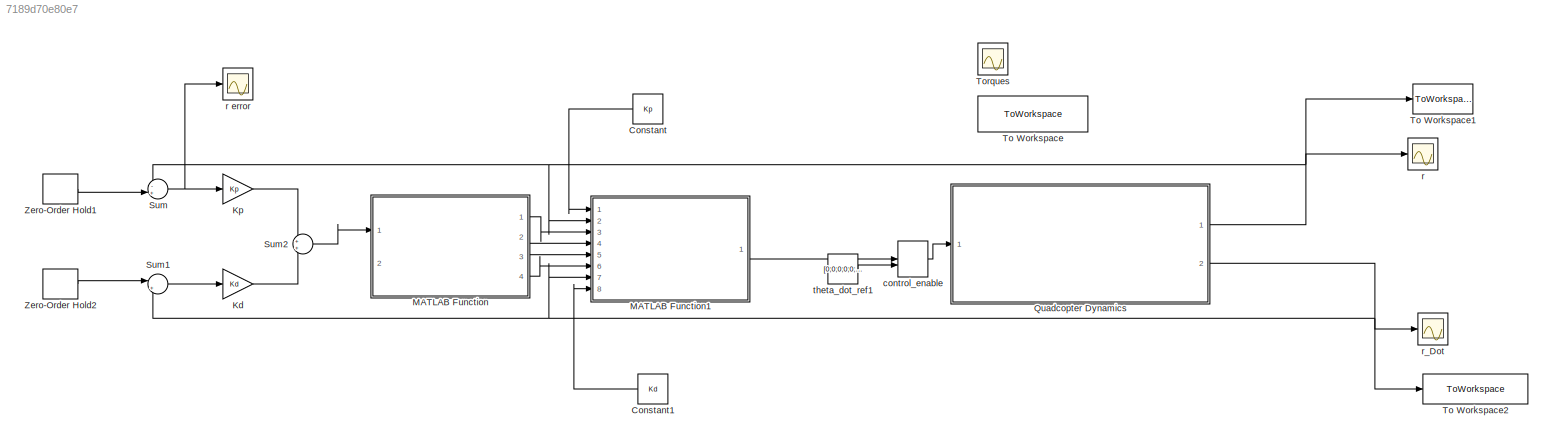
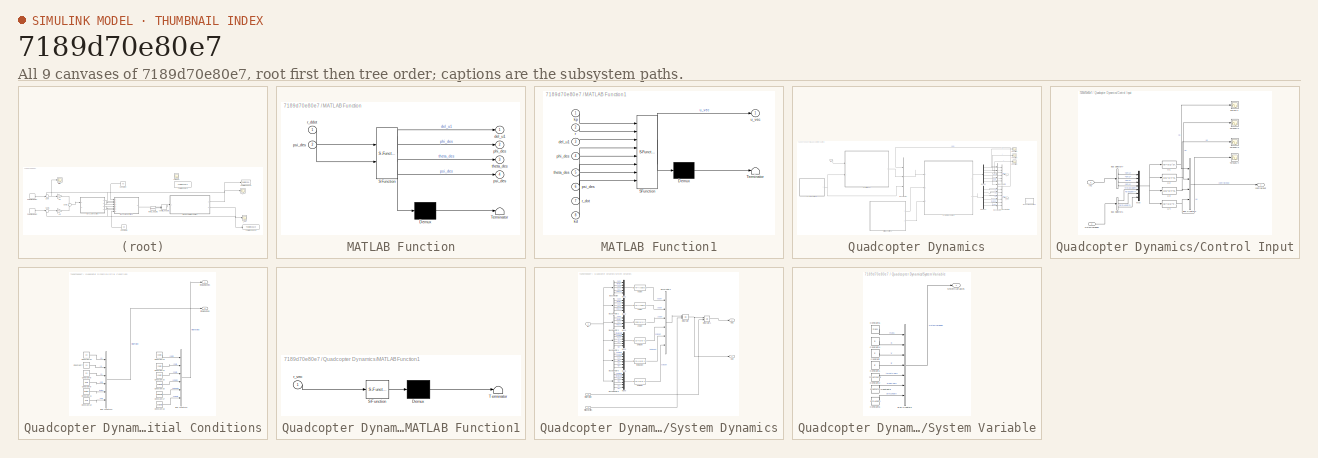
[diagram: thumbnail index - all 9 canvases of the model, root first then tree order]
MODEL slx_7189d70e80e7
KIND model
CONFIG AbsTol = auto
CONFIG EnableMultiTasking = on
CONFIG FixedStep = .001
CONFIG MaxStep = .001
CONFIG MinStep = auto
CONFIG RelTol = 1e-6
CONFIG SampleTimeConstraint = Unconstrained
CONFIG Solver = VariableStepAuto
CONFIG SolverName = VariableStepAuto
CONFIG StartTime = 0.0
CONFIG StopTime = 10
BLOCK [Constant] Constant
  Value = Kp
BLOCK [Constant] Constant1
  Value = Kd
BLOCK [Gain] Kd
  Gain = Kd
  OutDataTypeStr = Inherit: Inherit via internal rule
  ParamDataTypeStr = Inherit: Inherit via internal rule
  SaturateOnIntegerOverflow = off
BLOCK [Gain] Kp
  Gain = Kp
  OutDataTypeStr = Inherit: Inherit via internal rule
  ParamDataTypeStr = Inherit: Inherit via internal rule
  SaturateOnIntegerOverflow = off
BLOCK [SubSystem] MATLAB Function
  ErrorFcn = Stateflow.Translate.translate
  PermitHierarchicalResolution = ExplicitOnly
  Ports = [2, 4]
  RequestExecContextInheritance = off
  SFBlockType = MATLAB Function
  TreatAsAtomicUnit = on
BLOCK [Demux] MATLAB Function/ Demux 
  Outputs = 1
  Ports = [1, 1]
BLOCK [S-Function] MATLAB Function/ SFunction 
  EnableBusSupport = off
  FunctionName = sf_sfun
  PortCounts = [2 5]
  Ports = [2, 5]
  SFcnIsStateOwnerBlock = off
  SFunctionDeploymentMode = off
  Tag = Stateflow S-Function PID_control 3
BLOCK [Terminator] MATLAB Function/ Terminator 
BLOCK [Outport] MATLAB Function/del_u1
  IconDisplay = Port number
BLOCK [Outport] MATLAB Function/phi_des
  IconDisplay = Port number
  Port = 2
BLOCK [Outport] MATLAB Function/psi_des
  IconDisplay = Port number
  Port = 4
BLOCK [Inport] MATLAB Function/psi_des 
  IconDisplay = Port number
  Port = 2
BLOCK [Inport] MATLAB Function/r_ddot
  IconDisplay = Port number
BLOCK [Outport] MATLAB Function/theta_des
  IconDisplay = Port number
  Port = 3
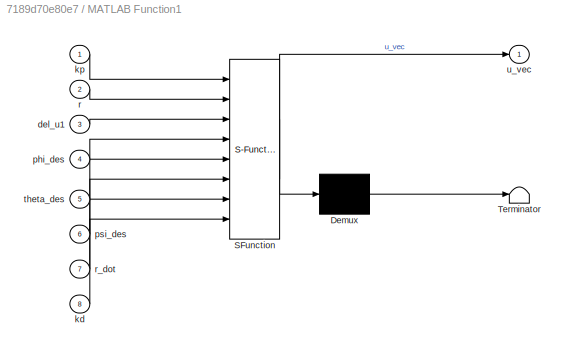
BLOCK [SubSystem] MATLAB Function1
  ErrorFcn = Stateflow.Translate.translate
  PermitHierarchicalResolution = ExplicitOnly
  Ports = [8, 1]
  RequestExecContextInheritance = off
  SFBlockType = MATLAB Function
  TreatAsAtomicUnit = on
BLOCK [Demux] MATLAB Function1/ Demux 
  Outputs = 1
  Ports = [1, 1]
BLOCK [S-Function] MATLAB Function1/ SFunction 
  EnableBusSupport = off
  FunctionName = sf_sfun
  PortCounts = [8 2]
  Ports = [8, 2]
  SFcnIsStateOwnerBlock = off
  SFunctionDeploymentMode = off
  Tag = Stateflow S-Function PID_control 5
BLOCK [Terminator] MATLAB Function1/ Terminator 
BLOCK [Inport] MATLAB Function1/del_u1
  IconDisplay = Port number
  Port = 3
BLOCK [Inport] MATLAB Function1/kd
  IconDisplay = Port number
  Port = 8
BLOCK [Inport] MATLAB Function1/kp
  IconDisplay = Port number
BLOCK [Inport] MATLAB Function1/phi_des
  IconDisplay = Port number
  Port = 4
BLOCK [Inport] MATLAB Function1/psi_des
  IconDisplay = Port number
  Port = 6
BLOCK [Inport] MATLAB Function1/r
  IconDisplay = Port number
  Port = 2
BLOCK [Inport] MATLAB Function1/r_dot
  IconDisplay = Port number
  Port = 7
BLOCK [Inport] MATLAB Function1/theta_des
  IconDisplay = Port number
  Port = 5
BLOCK [Outport] MATLAB Function1/u_vec
  IconDisplay = Port number
BLOCK [SubSystem] Quadcopter Dynamics
  Ports = [1, 2]
  RequestExecContextInheritance = off
BLOCK [BusCreator] Quadcopter Dynamics/Bus Creator
  DisplayOption = bar
  InheritFromInputs = on
  Inputs = 3
  Ports = [3, 1]
BLOCK [BusCreator] Quadcopter Dynamics/Bus Creator1
  DisplayOption = bar
  InheritFromInputs = on
  Inputs = 6
  Ports = [6, 1]
BLOCK [BusCreator] Quadcopter Dynamics/Bus Creator2
  DisplayOption = bar
  InheritFromInputs = on
  Inputs = 6
  Ports = [6, 1]
BLOCK [BusCreator] Quadcopter Dynamics/Bus Creator4
  DisplayOption = bar
  InheritFromInputs = on
  Inputs = 12
  Ports = [12, 1]
BLOCK [SubSystem] Quadcopter Dynamics/Control Input
  Ports = [2, 1]
  RequestExecContextInheritance = off
BLOCK [BusCreator] Quadcopter Dynamics/Control Input/Bus Creator1
  DisplayOption = bar
  InheritFromInputs = on
  Inputs = 4
  Ports = [4, 1]
BLOCK [BusSelector] Quadcopter Dynamics/Control Input/Bus Selector1
  OutputAsBus = off
  OutputSignals = thrustCoeff,dragCoeff,armLength
  Ports = [1, 3]
BLOCK [BusSelector] Quadcopter Dynamics/Control Input/Bus Selector7
  OutputAsBus = off
  OutputSignals = om1,om2,om3,om4
  Ports = [1, 4]
BLOCK [Scope] Quadcopter Dynamics/Control Input/ForceU1
  Floating = off
  NumInputPorts = 1
  Ports = [1]
  ScopeSpecificationString = Simulink.scopes.TimeScopeBlockCfg('CurrentConfiguration', extmgr.ConfigurationSet(extmgr.Configuration('Core','General UI',true),extmgr.Configuration('Core','Source UI',true),extmgr.Configuration('Sources','WiredSimulink',true,'DataLoggingVariableName','ScopeData4'),extmgr.Configuration('Visuals','Time Domain',true,'SerializedDisplays',{struct('MinYLimReal','9.00000','MaxYLimReal','11.00000','YLab...<+1392ch>
BLOCK [Inport] Quadcopter Dynamics/Control Input/In1
  IconDisplay = Port number
BLOCK [Mux] Quadcopter Dynamics/Control Input/Mux
  DisplayOption = bar
  Inputs = 7
  Ports = [7, 1]
BLOCK [Scope] Quadcopter Dynamics/Control Input/TorqueU2
  Floating = off
  NumInputPorts = 1
  Ports = [1]
  ScopeSpecificationString = Simulink.scopes.TimeScopeBlockCfg('CurrentConfiguration', extmgr.ConfigurationSet(extmgr.Configuration('Core','General UI',true),extmgr.Configuration('Core','Source UI',true),extmgr.Configuration('Sources','WiredSimulink',true,'DataLoggingVariableName','ScopeData7'),extmgr.Configuration('Visuals','Time Domain',true,'SerializedDisplays',{struct('MinYLimReal','-1.00000','MaxYLimReal','1.00000','YLab...<+1390ch>
BLOCK [Scope] Quadcopter Dynamics/Control Input/TorqueU3
  Floating = off
  NumInputPorts = 1
  Ports = [1]
  ScopeSpecificationString = Simulink.scopes.TimeScopeBlockCfg('CurrentConfiguration', extmgr.ConfigurationSet(extmgr.Configuration('Core','General UI',true),extmgr.Configuration('Core','Source UI',true),extmgr.Configuration('Sources','WiredSimulink',true,'DataLoggingVariableName','ScopeData5'),extmgr.Configuration('Visuals','Time Domain',true,'SerializedDisplays',{struct('MinYLimReal','-1.00000','MaxYLimReal','1.00000','YLab...<+1361ch>
BLOCK [Scope] Quadcopter Dynamics/Control Input/TorqueU4
  Floating = off
  NumInputPorts = 1
  Ports = [1]
  ScopeSpecificationString = Simulink.scopes.TimeScopeBlockCfg('CurrentConfiguration', extmgr.ConfigurationSet(extmgr.Configuration('Core','General UI',true),extmgr.Configuration('Core','Source UI',true),extmgr.Configuration('Sources','WiredSimulink',true,'DataLoggingVariableName','ScopeData6'),extmgr.Configuration('Visuals','Time Domain',true,'SerializedDisplays',{struct('MinYLimReal','-1.00000','MaxYLimReal','1.00000','YLab...<+1361ch>
BLOCK [Fcn] Quadcopter Dynamics/Control Input/U1
  Expr = u(5)*(u(1)^2+u(2)^2+u(3)^2+u(4)^2)
BLOCK [Fcn] Quadcopter Dynamics/Control Input/U2
  Expr = (u(5)*u(7)*sin(pi/4))*(u(1)^2+u(2)^2-u(3)^2-u(4)^2)
BLOCK [Fcn] Quadcopter Dynamics/Control Input/U3
  Expr = (u(5)*u(7)*sin(pi/4))*(u(1)^2-u(2)^2-u(3)^2+u(4)^2)
BLOCK [Fcn] Quadcopter Dynamics/Control Input/U4
  Expr = u(6)*(u(1)^2-u(2)^2+u(3)^2-u(4)^2)
BLOCK [Outport] Quadcopter Dynamics/Control Input/controlInput
  IconDisplay = Port number
BLOCK [Inport] Quadcopter Dynamics/Control Input/systemVariables
  IconDisplay = Port number
  Port = 2
BLOCK [Demux] Quadcopter Dynamics/Demux
  DisplayOption = bar
  Outputs = 6
  Ports = [1, 6]
BLOCK [Demux] Quadcopter Dynamics/Demux1
  DisplayOption = bar
  Outputs = 6
  Ports = [1, 6]
BLOCK [Inport] Quadcopter Dynamics/In1
  IconDisplay = Port number
BLOCK [SubSystem] Quadcopter Dynamics/Initial Conditions
  Ports = [0, 2]
  RequestExecContextInheritance = off
BLOCK [BusCreator] Quadcopter Dynamics/Initial Conditions/Bus Creator5
  DisplayOption = bar
  InheritFromInputs = on
  Inputs = 6
  Ports = [6, 1]
BLOCK [BusCreator] Quadcopter Dynamics/Initial Conditions/Bus Creator6
  DisplayOption = bar
  InheritFromInputs = on
  Inputs = 6
  Ports = [6, 1]
BLOCK [Constant] Quadcopter Dynamics/Initial Conditions/Constant10
  Value = x0
BLOCK [Constant] Quadcopter Dynamics/Initial Conditions/Constant11
  Value = theta0
BLOCK [Constant] Quadcopter Dynamics/Initial Conditions/Constant12
  Value = psi0
BLOCK [Constant] Quadcopter Dynamics/Initial Conditions/Constant13
  Value = xDot0
BLOCK [Constant] Quadcopter Dynamics/Initial Conditions/Constant14
  Value = yDot0
BLOCK [Constant] Quadcopter Dynamics/Initial Conditions/Constant15
  Value = zDot0
BLOCK [Constant] Quadcopter Dynamics/Initial Conditions/Constant16
  Value = phiDot0
BLOCK [Constant] Quadcopter Dynamics/Initial Conditions/Constant17
  Value = thetaDot0
BLOCK [Constant] Quadcopter Dynamics/Initial Conditions/Constant18
  Value = psiDot0
BLOCK [Constant] Quadcopter Dynamics/Initial Conditions/Constant7
  Value = y0
BLOCK [Constant] Quadcopter Dynamics/Initial Conditions/Constant8
  Value = z0
BLOCK [Constant] Quadcopter Dynamics/Initial Conditions/Constant9
  Value = phi0
BLOCK [Outport] Quadcopter Dynamics/Initial Conditions/initialPosition
  IconDisplay = Port number
  Port = 2
BLOCK [Outport] Quadcopter Dynamics/Initial Conditions/initialVelocities
  IconDisplay = Port number
BLOCK [SubSystem] Quadcopter Dynamics/MATLAB Function1
  ErrorFcn = Stateflow.Translate.translate
  PermitHierarchicalResolution = ExplicitOnly
  Ports = [1]
  RequestExecContextInheritance = off
  SFBlockType = MATLAB Function
  TreatAsAtomicUnit = on
BLOCK [Demux] Quadcopter Dynamics/MATLAB Function1/ Demux 
  Outputs = 1
  Ports = [1, 1]
BLOCK [S-Function] Quadcopter Dynamics/MATLAB Function1/ SFunction 
  EnableBusSupport = off
  FunctionName = sf_sfun
  PortCounts = [1 1]
  Ports = [1, 1]
  SFcnIsStateOwnerBlock = off
  SFunctionDeploymentMode = off
  Tag = Stateflow S-Function PID_control 1
BLOCK [Terminator] Quadcopter Dynamics/MATLAB Function1/ Terminator 
BLOCK [Inport] Quadcopter Dynamics/MATLAB Function1/r_vec
  IconDisplay = Port number
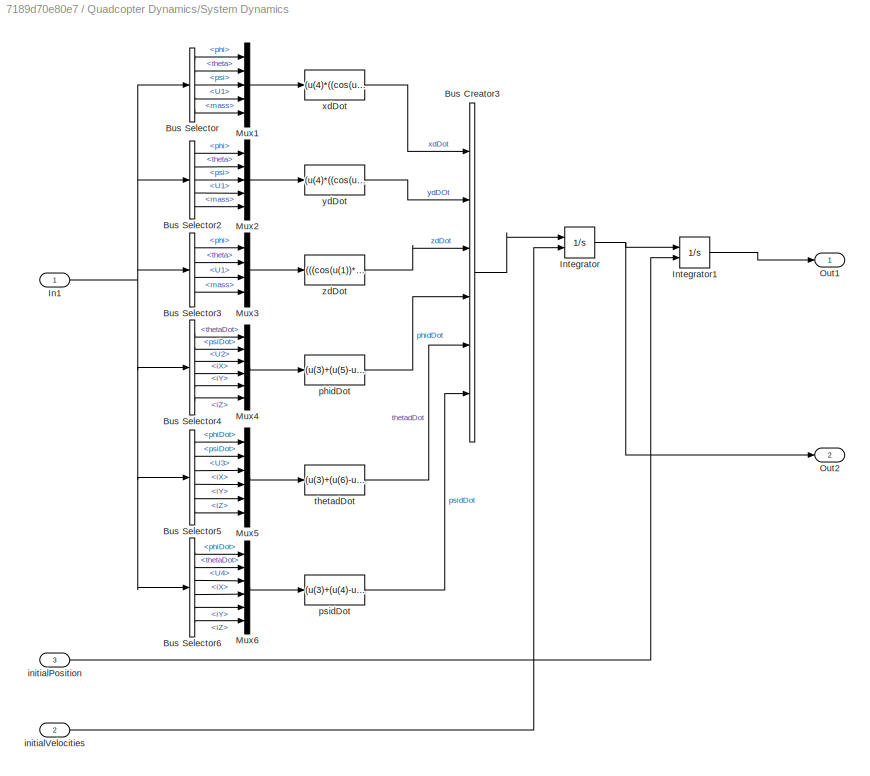
BLOCK [SubSystem] Quadcopter Dynamics/System Dynamics
  Ports = [3, 2]
  RequestExecContextInheritance = off
BLOCK [BusCreator] Quadcopter Dynamics/System Dynamics/Bus Creator3
  DisplayOption = bar
  InheritFromInputs = on
  Inputs = 6
  Ports = [6, 1]
BLOCK [BusSelector] Quadcopter Dynamics/System Dynamics/Bus Selector
  OutputAsBus = off
  OutputSignals = States.phi,States.theta,States.psi,controlInput.U1,systemVariables.mass
  Ports = [1, 5]
BLOCK [BusSelector] Quadcopter Dynamics/System Dynamics/Bus Selector2
  OutputAsBus = off
  OutputSignals = States.phi,States.theta,States.psi,controlInput.U1,systemVariables.mass
  Ports = [1, 5]
BLOCK [BusSelector] Quadcopter Dynamics/System Dynamics/Bus Selector3
  OutputAsBus = off
  OutputSignals = States.phi,States.theta,controlInput.U1,systemVariables.mass
  Ports = [1, 4]
BLOCK [BusSelector] Quadcopter Dynamics/System Dynamics/Bus Selector4
  OutputAsBus = off
  OutputSignals = States.thetaDot,States.psiDot,controlInput.U2,systemVariables.iX,systemVariables.iY,systemVariables.iZ
  Ports = [1, 6]
BLOCK [BusSelector] Quadcopter Dynamics/System Dynamics/Bus Selector5
  OutputAsBus = off
  OutputSignals = States.phiDot,States.psiDot,controlInput.U3,systemVariables.iX,systemVariables.iY,systemVariables.iZ
  Ports = [1, 6]
BLOCK [BusSelector] Quadcopter Dynamics/System Dynamics/Bus Selector6
  OutputAsBus = off
  OutputSignals = States.phiDot,States.thetaDot,controlInput.U4,systemVariables.iX,systemVariables.iY,systemVariables.iZ
  Ports = [1, 6]
BLOCK [Inport] Quadcopter Dynamics/System Dynamics/In1
  IconDisplay = Port number
BLOCK [Integrator] Quadcopter Dynamics/System Dynamics/Integrator
  InitialConditionSource = external
  Ports = [2, 1]
BLOCK [Integrator] Quadcopter Dynamics/System Dynamics/Integrator1
  InitialConditionSource = external
  Ports = [2, 1]
BLOCK [Mux] Quadcopter Dynamics/System Dynamics/Mux1
  DisplayOption = bar
  Inputs = 5
  Ports = [5, 1]
BLOCK [Mux] Quadcopter Dynamics/System Dynamics/Mux2
  DisplayOption = bar
  Inputs = 5
  Ports = [5, 1]
BLOCK [Mux] Quadcopter Dynamics/System Dynamics/Mux3
  DisplayOption = bar
  Ports = [4, 1]
BLOCK [Mux] Quadcopter Dynamics/System Dynamics/Mux4
  DisplayOption = bar
  Inputs = 6
  Ports = [6, 1]
BLOCK [Mux] Quadcopter Dynamics/System Dynamics/Mux5
  DisplayOption = bar
  Inputs = 6
  Ports = [6, 1]
BLOCK [Mux] Quadcopter Dynamics/System Dynamics/Mux6
  DisplayOption = bar
  Inputs = 6
  Ports = [6, 1]
BLOCK [Outport] Quadcopter Dynamics/System Dynamics/Out1
  IconDisplay = Port number
BLOCK [Outport] Quadcopter Dynamics/System Dynamics/Out2
  IconDisplay = Port number
  Port = 2
BLOCK [Inport] Quadcopter Dynamics/System Dynamics/initialPosition
  IconDisplay = Port number
  Port = 3
BLOCK [Inport] Quadcopter Dynamics/System Dynamics/initialVelocities
  IconDisplay = Port number
  Port = 2
BLOCK [Fcn] Quadcopter Dynamics/System Dynamics/phidDot
  Expr = (u(3)+(u(5)-u(6))*(u(1)*u(2)))/u(4)
BLOCK [Fcn] Quadcopter Dynamics/System Dynamics/psidDot
  Expr = (u(3)+(u(4)-u(5))*(u(1)*u(2)))/u(6)
BLOCK [Fcn] Quadcopter Dynamics/System Dynamics/thetadDot
  Expr = (u(3)+(u(6)-u(4))*(u(1)*u(2)))/u(5)
BLOCK [Fcn] Quadcopter Dynamics/System Dynamics/xdDot
  Expr = (u(4)*((cos(u(1))*sin(u(2))*cos(u(3)))+(sin(u(1))*sin(u(3)))))/u(5)
BLOCK [Fcn] Quadcopter Dynamics/System Dynamics/ydDot
  Expr = (u(4)*((cos(u(1))*sin(u(2))*sin(u(3)))-(sin(u(1))*cos(u(3)))))/u(5)
BLOCK [Fcn] Quadcopter Dynamics/System Dynamics/zdDot
  Expr = (((cos(u(1))*cos(u(2)))*u(3))/u(4))-9.81
BLOCK [SubSystem] Quadcopter Dynamics/System Variable
  Ports = [0, 1]
  RequestExecContextInheritance = off
BLOCK [BusCreator] Quadcopter Dynamics/System Variable/Bus Creator2
  DisplayOption = bar
  InheritFromInputs = on
  Inputs = 7
  Ports = [7, 1]
BLOCK [Constant] Quadcopter Dynamics/System Variable/Constant
  Value = iY
BLOCK [Constant] Quadcopter Dynamics/System Variable/Constant1
  Value = iZ
BLOCK [Constant] Quadcopter Dynamics/System Variable/Constant2
  Value = thrustFactor
BLOCK [Constant] Quadcopter Dynamics/System Variable/Constant3
  Value = dragFactor
BLOCK [Constant] Quadcopter Dynamics/System Variable/Constant4
  Value = iX
BLOCK [Constant] Quadcopter Dynamics/System Variable/Constant5
  Value = armLength
BLOCK [Constant] Quadcopter Dynamics/System Variable/Constant6
  Value = mass
BLOCK [Outport] Quadcopter Dynamics/System Variable/systemVariables
  IconDisplay = Port number
BLOCK [Scope] Quadcopter Dynamics/X Position
  Floating = off
  NumInputPorts = 1
  Ports = [1]
  ScopeSpecificationString = Simulink.scopes.TimeScopeBlockCfg('CurrentConfiguration', extmgr.ConfigurationSet(extmgr.Configuration('Core','General UI',true),extmgr.Configuration('Core','Source UI',true),extmgr.Configuration('Sources','WiredSimulink',true,'DataLoggingVariableName','ScopeData5'),extmgr.Configuration('Visuals','Time Domain',true,'SerializedDisplays',{struct('MinYLimReal','4.00000','MaxYLimReal','6.00000','YLabe...<+1387ch>
BLOCK [Scope] Quadcopter Dynamics/Y Position
  Floating = off
  NumInputPorts = 1
  Ports = [1]
  ScopeSpecificationString = Simulink.scopes.TimeScopeBlockCfg('CurrentConfiguration', extmgr.ConfigurationSet(extmgr.Configuration('Core','General UI',true),extmgr.Configuration('Core','Source UI',true),extmgr.Configuration('Sources','WiredSimulink',true,'DataLoggingVariableName','ScopeData6'),extmgr.Configuration('Visuals','Time Domain',true,'SerializedDisplays',{struct('MinYLimReal','4.00000','MaxYLimReal','6.00000','YLabe...<+1358ch>
BLOCK [Scope] Quadcopter Dynamics/Z Position
  Floating = off
  NumInputPorts = 1
  Ports = [1]
  ScopeSpecificationString = Simulink.scopes.TimeScopeBlockCfg('CurrentConfiguration', extmgr.ConfigurationSet(extmgr.Configuration('Core','General UI',true),extmgr.Configuration('Core','Source UI',true),extmgr.Configuration('Sources','WiredSimulink',true,'DataLoggingVariableName','ScopeData7'),extmgr.Configuration('Visuals','Time Domain',true,'SerializedDisplays',{struct('MinYLimReal','-42.79688','MaxYLimReal','435.17188','Y...<+1370ch>
BLOCK [Outport] Quadcopter Dynamics/r
  IconDisplay = Port number
BLOCK [Outport] Quadcopter Dynamics/r_dot
  IconDisplay = Port number
  Port = 2
BLOCK [Sum] Sum
  IconShape = round
  InputSameDT = off
  Inputs = -+|
  OutDataTypeStr = Inherit: Inherit via internal rule
  Ports = [2, 1]
  SaturateOnIntegerOverflow = off
BLOCK [Sum] Sum1
  IconShape = round
  InputSameDT = off
  Inputs = |+-
  OutDataTypeStr = Inherit: Inherit via internal rule
  Ports = [2, 1]
  SaturateOnIntegerOverflow = off
BLOCK [Sum] Sum2
  IconShape = round
  InputSameDT = off
  OutDataTypeStr = Inherit: Inherit via internal rule
  Ports = [2, 1]
  SaturateOnIntegerOverflow = off
BLOCK [ToWorkspace] To Workspace
  FixptAsFi = on
  MaxDataPoints = inf
  Ports = [1]
  SampleTime = -1
  Save2DSignal = 3-D array (concatenate along third dimension)
  SaveFormat = Structure With Time
  VariableName = control_torque
BLOCK [ToWorkspace] To Workspace1
  FixptAsFi = on
  MaxDataPoints = inf
  Ports = [1]
  SampleTime = -1
  Save2DSignal = 3-D array (concatenate along third dimension)
  SaveFormat = Structure With Time
  VariableName = theta_actual
BLOCK [ToWorkspace] To Workspace2
  FixptAsFi = on
  MaxDataPoints = inf
  Ports = [1]
  SampleTime = -1
  Save2DSignal = 3-D array (concatenate along third dimension)
  SaveFormat = Structure With Time
  VariableName = theta_dot_actual
BLOCK [Scope] Torques
  Floating = off
  NumInputPorts = 1
  Ports = [1]
  ScopeSpecificationString = Simulink.scopes.TimeScopeBlockCfg('CurrentConfiguration', extmgr.ConfigurationSet(extmgr.Configuration('Core','General UI',true),extmgr.Configuration('Core','Source UI',true),extmgr.Configuration('Sources','WiredSimulink',true,'DataLoggingVariableName','ScopeData1'),extmgr.Configuration('Visuals','Time Domain',true,'SerializedDisplays',{struct('MinYLimReal','-206.1215','MaxYLimReal','508.67229','Y...<+1536ch>
BLOCK [ZeroOrderHold] Zero-Order Hold1
  SampleTime = 0.001
BLOCK [ZeroOrderHold] Zero-Order Hold2
  SampleTime = 0.001
BLOCK [ManualSwitch] control_enable
BLOCK [Scope] r
  Floating = off
  NumInputPorts = 1
  Ports = [1]
  ScopeSpecificationString = Simulink.scopes.TimeScopeBlockCfg('CurrentConfiguration', extmgr.ConfigurationSet(extmgr.Configuration('Core','General UI',true),extmgr.Configuration('Core','Source UI',true),extmgr.Configuration('Sources','WiredSimulink',true),extmgr.Configuration('Visuals','Time Domain',true,'SerializedDisplays',{struct('MinYLimReal','-2.19854','MaxYLimReal','4.54615','YLabelReal','','MinYLimMag','0.00000','MaxY...<+1394ch>
BLOCK [Scope] r error
  Floating = off
  NumInputPorts = 1
  Ports = [1]
  ScopeSpecificationString = Simulink.scopes.TimeScopeBlockCfg('CurrentConfiguration', extmgr.ConfigurationSet(extmgr.Configuration('Core','General UI',true),extmgr.Configuration('Core','Source UI',true),extmgr.Configuration('Sources','WiredSimulink',true,'DataLoggingVariableName','ScopeData2'),extmgr.Configuration('Visuals','Time Domain',true,'SerializedDisplays',{struct('MinYLimReal','-2.01582','MaxYLimReal','2.80687','YLab...<+1446ch>
BLOCK [Scope] r_Dot
  Floating = off
  NumInputPorts = 1
  Ports = [1]
  ScopeSpecificationString = Simulink.scopes.TimeScopeBlockCfg('CurrentConfiguration', extmgr.ConfigurationSet(extmgr.Configuration('Core','General UI',true),extmgr.Configuration('Core','Source UI',true),extmgr.Configuration('Sources','WiredSimulink',true,'DataLoggingVariableName','ScopeData1'),extmgr.Configuration('Visuals','Time Domain',true,'SerializedDisplays',{struct('MinYLimReal','-5.51584','MaxYLimReal','1.67824','YLab...<+1433ch>
BLOCK [Constant] theta_dot_ref1
  Value = [0;0;0;0;0;0]
LINE Constant1:1 -> MATLAB Function1:8
LINE Constant:1 -> MATLAB Function1:1
LINE Kd:1 -> Sum2:2
LINE Kp:1 -> Sum2:1
LINE MATLAB Function1:1 -> control_enable:1
LINE MATLAB Function:1 -> MATLAB Function1:3
LINE MATLAB Function:2 -> MATLAB Function1:4
LINE MATLAB Function:3 -> MATLAB Function1:5
LINE MATLAB Function:4 -> MATLAB Function1:6
LINE Quadcopter Dynamics/Bus Creator1:1 -> Quadcopter Dynamics/r:1
LINE Quadcopter Dynamics/Bus Creator2:1 -> Quadcopter Dynamics/r_dot:1
LINE Quadcopter Dynamics/Bus Creator4:1 -> Quadcopter Dynamics/Bus Creator:1
LINE Quadcopter Dynamics/Bus Creator:1 -> Quadcopter Dynamics/System Dynamics:1
LINE Quadcopter Dynamics/Control Input/Bus Creator1:1 -> Quadcopter Dynamics/Control Input/controlInput:1
LINE Quadcopter Dynamics/Control Input/Bus Selector1:1 -> Quadcopter Dynamics/Control Input/Mux:5
LINE Quadcopter Dynamics/Control Input/Bus Selector1:2 -> Quadcopter Dynamics/Control Input/Mux:6
LINE Quadcopter Dynamics/Control Input/Bus Selector1:3 -> Quadcopter Dynamics/Control Input/Mux:7
LINE Quadcopter Dynamics/Control Input/Bus Selector7:1 -> Quadcopter Dynamics/Control Input/Mux:1
LINE Quadcopter Dynamics/Control Input/Bus Selector7:2 -> Quadcopter Dynamics/Control Input/Mux:2
LINE Quadcopter Dynamics/Control Input/Bus Selector7:3 -> Quadcopter Dynamics/Control Input/Mux:3
LINE Quadcopter Dynamics/Control Input/Bus Selector7:4 -> Quadcopter Dynamics/Control Input/Mux:4
LINE Quadcopter Dynamics/Control Input/In1:1 -> Quadcopter Dynamics/Control Input/Bus Selector7:1
NET Quadcopter Dynamics/Control Input/Mux:1 -> Quadcopter Dynamics/Control Input/U1:1, Quadcopter Dynamics/Control Input/U2:1, Quadcopter Dynamics/Control Input/U3:1, Quadcopter Dynamics/Control Input/U4:1
NET Quadcopter Dynamics/Control Input/U1:1 -> Quadcopter Dynamics/Control Input/Bus Creator1:1, Quadcopter Dynamics/Control Input/ForceU1:1
NET Quadcopter Dynamics/Control Input/U2:1 -> Quadcopter Dynamics/Control Input/Bus Creator1:2, Quadcopter Dynamics/Control Input/TorqueU2:1
NET Quadcopter Dynamics/Control Input/U3:1 -> Quadcopter Dynamics/Control Input/Bus Creator1:3, Quadcopter Dynamics/Control Input/TorqueU3:1
NET Quadcopter Dynamics/Control Input/U4:1 -> Quadcopter Dynamics/Control Input/Bus Creator1:4, Quadcopter Dynamics/Control Input/TorqueU4:1
LINE Quadcopter Dynamics/Control Input/systemVariables:1 -> Quadcopter Dynamics/Control Input/Bus Selector1:1
LINE Quadcopter Dynamics/Control Input:1 -> Quadcopter Dynamics/Bus Creator:2
NET Quadcopter Dynamics/Demux1:1 -> Quadcopter Dynamics/Bus Creator2:1, Quadcopter Dynamics/Bus Creator4:7
NET Quadcopter Dynamics/Demux1:2 -> Quadcopter Dynamics/Bus Creator2:2, Quadcopter Dynamics/Bus Creator4:8
NET Quadcopter Dynamics/Demux1:3 -> Quadcopter Dynamics/Bus Creator2:3, Quadcopter Dynamics/Bus Creator4:9
NET Quadcopter Dynamics/Demux1:4 -> Quadcopter Dynamics/Bus Creator2:4, Quadcopter Dynamics/Bus Creator4:10
NET Quadcopter Dynamics/Demux1:5 -> Quadcopter Dynamics/Bus Creator2:5, Quadcopter Dynamics/Bus Creator4:11
NET Quadcopter Dynamics/Demux1:6 -> Quadcopter Dynamics/Bus Creator2:6, Quadcopter Dynamics/Bus Creator4:12
NET Quadcopter Dynamics/Demux:1 -> Quadcopter Dynamics/Bus Creator1:1, Quadcopter Dynamics/Bus Creator4:1, Quadcopter Dynamics/X Position:1
NET Quadcopter Dynamics/Demux:2 -> Quadcopter Dynamics/Bus Creator1:2, Quadcopter Dynamics/Bus Creator4:2, Quadcopter Dynamics/Y Position:1
NET Quadcopter Dynamics/Demux:3 -> Quadcopter Dynamics/Bus Creator1:3, Quadcopter Dynamics/Bus Creator4:3, Quadcopter Dynamics/Z Position:1
NET Quadcopter Dynamics/Demux:4 -> Quadcopter Dynamics/Bus Creator1:4, Quadcopter Dynamics/Bus Creator4:4
NET Quadcopter Dynamics/Demux:5 -> Quadcopter Dynamics/Bus Creator1:5, Quadcopter Dynamics/Bus Creator4:5
NET Quadcopter Dynamics/Demux:6 -> Quadcopter Dynamics/Bus Creator1:6, Quadcopter Dynamics/Bus Creator4:6
LINE Quadcopter Dynamics/In1:1 -> Quadcopter Dynamics/Control Input:1
LINE Quadcopter Dynamics/Initial Conditions/Bus Creator5:1 -> Quadcopter Dynamics/Initial Conditions/initialPosition:1
LINE Quadcopter Dynamics/Initial Conditions/Bus Creator6:1 -> Quadcopter Dynamics/Initial Conditions/initialVelocities:1
LINE Quadcopter Dynamics/Initial Conditions/Constant10:1 -> Quadcopter Dynamics/Initial Conditions/Bus Creator5:1
LINE Quadcopter Dynamics/Initial Conditions/Constant11:1 -> Quadcopter Dynamics/Initial Conditions/Bus Creator5:5
LINE Quadcopter Dynamics/Initial Conditions/Constant12:1 -> Quadcopter Dynamics/Initial Conditions/Bus Creator5:6
LINE Quadcopter Dynamics/Initial Conditions/Constant13:1 -> Quadcopter Dynamics/Initial Conditions/Bus Creator6:1
LINE Quadcopter Dynamics/Initial Conditions/Constant14:1 -> Quadcopter Dynamics/Initial Conditions/Bus Creator6:2
LINE Quadcopter Dynamics/Initial Conditions/Constant15:1 -> Quadcopter Dynamics/Initial Conditions/Bus Creator6:3
LINE Quadcopter Dynamics/Initial Conditions/Constant16:1 -> Quadcopter Dynamics/Initial Conditions/Bus Creator6:4
LINE Quadcopter Dynamics/Initial Conditions/Constant17:1 -> Quadcopter Dynamics/Initial Conditions/Bus Creator6:5
LINE Quadcopter Dynamics/Initial Conditions/Constant18:1 -> Quadcopter Dynamics/Initial Conditions/Bus Creator6:6
LINE Quadcopter Dynamics/Initial Conditions/Constant7:1 -> Quadcopter Dynamics/Initial Conditions/Bus Creator5:2
LINE Quadcopter Dynamics/Initial Conditions/Constant8:1 -> Quadcopter Dynamics/Initial Conditions/Bus Creator5:3
LINE Quadcopter Dynamics/Initial Conditions/Constant9:1 -> Quadcopter Dynamics/Initial Conditions/Bus Creator5:4
LINE Quadcopter Dynamics/Initial Conditions:1 -> Quadcopter Dynamics/System Dynamics:2
LINE Quadcopter Dynamics/Initial Conditions:2 -> Quadcopter Dynamics/System Dynamics:3
LINE Quadcopter Dynamics/System Dynamics/Bus Creator3:1 -> Quadcopter Dynamics/System Dynamics/Integrator:1
LINE Quadcopter Dynamics/System Dynamics/Bus Selector2:1 -> Quadcopter Dynamics/System Dynamics/Mux2:1
LINE Quadcopter Dynamics/System Dynamics/Bus Selector2:2 -> Quadcopter Dynamics/System Dynamics/Mux2:2
LINE Quadcopter Dynamics/System Dynamics/Bus Selector2:3 -> Quadcopter Dynamics/System Dynamics/Mux2:3
LINE Quadcopter Dynamics/System Dynamics/Bus Selector2:4 -> Quadcopter Dynamics/System Dynamics/Mux2:4
LINE Quadcopter Dynamics/System Dynamics/Bus Selector2:5 -> Quadcopter Dynamics/System Dynamics/Mux2:5
LINE Quadcopter Dynamics/System Dynamics/Bus Selector3:1 -> Quadcopter Dynamics/System Dynamics/Mux3:1
LINE Quadcopter Dynamics/System Dynamics/Bus Selector3:2 -> Quadcopter Dynamics/System Dynamics/Mux3:2
LINE Quadcopter Dynamics/System Dynamics/Bus Selector3:3 -> Quadcopter Dynamics/System Dynamics/Mux3:3
LINE Quadcopter Dynamics/System Dynamics/Bus Selector3:4 -> Quadcopter Dynamics/System Dynamics/Mux3:4
LINE Quadcopter Dynamics/System Dynamics/Bus Selector4:1 -> Quadcopter Dynamics/System Dynamics/Mux4:1
LINE Quadcopter Dynamics/System Dynamics/Bus Selector4:2 -> Quadcopter Dynamics/System Dynamics/Mux4:2
LINE Quadcopter Dynamics/System Dynamics/Bus Selector4:3 -> Quadcopter Dynamics/System Dynamics/Mux4:3
LINE Quadcopter Dynamics/System Dynamics/Bus Selector4:4 -> Quadcopter Dynamics/System Dynamics/Mux4:4
LINE Quadcopter Dynamics/System Dynamics/Bus Selector4:5 -> Quadcopter Dynamics/System Dynamics/Mux4:5
LINE Quadcopter Dynamics/System Dynamics/Bus Selector4:6 -> Quadcopter Dynamics/System Dynamics/Mux4:6
LINE Quadcopter Dynamics/System Dynamics/Bus Selector5:1 -> Quadcopter Dynamics/System Dynamics/Mux5:1
LINE Quadcopter Dynamics/System Dynamics/Bus Selector5:2 -> Quadcopter Dynamics/System Dynamics/Mux5:2
LINE Quadcopter Dynamics/System Dynamics/Bus Selector5:3 -> Quadcopter Dynamics/System Dynamics/Mux5:3
LINE Quadcopter Dynamics/System Dynamics/Bus Selector5:4 -> Quadcopter Dynamics/System Dynamics/Mux5:4
LINE Quadcopter Dynamics/System Dynamics/Bus Selector5:5 -> Quadcopter Dynamics/System Dynamics/Mux5:5
LINE Quadcopter Dynamics/System Dynamics/Bus Selector5:6 -> Quadcopter Dynamics/System Dynamics/Mux5:6
LINE Quadcopter Dynamics/System Dynamics/Bus Selector6:1 -> Quadcopter Dynamics/System Dynamics/Mux6:1
LINE Quadcopter Dynamics/System Dynamics/Bus Selector6:2 -> Quadcopter Dynamics/System Dynamics/Mux6:2
LINE Quadcopter Dynamics/System Dynamics/Bus Selector6:3 -> Quadcopter Dynamics/System Dynamics/Mux6:3
LINE Quadcopter Dynamics/System Dynamics/Bus Selector6:4 -> Quadcopter Dynamics/System Dynamics/Mux6:4
LINE Quadcopter Dynamics/System Dynamics/Bus Selector6:5 -> Quadcopter Dynamics/System Dynamics/Mux6:5
LINE Quadcopter Dynamics/System Dynamics/Bus Selector6:6 -> Quadcopter Dynamics/System Dynamics/Mux6:6
LINE Quadcopter Dynamics/System Dynamics/Bus Selector:1 -> Quadcopter Dynamics/System Dynamics/Mux1:1
LINE Quadcopter Dynamics/System Dynamics/Bus Selector:2 -> Quadcopter Dynamics/System Dynamics/Mux1:2
LINE Quadcopter Dynamics/System Dynamics/Bus Selector:3 -> Quadcopter Dynamics/System Dynamics/Mux1:3
LINE Quadcopter Dynamics/System Dynamics/Bus Selector:4 -> Quadcopter Dynamics/System Dynamics/Mux1:4
LINE Quadcopter Dynamics/System Dynamics/Bus Selector:5 -> Quadcopter Dynamics/System Dynamics/Mux1:5
NET Quadcopter Dynamics/System Dynamics/In1:1 -> Quadcopter Dynamics/System Dynamics/Bus Selector2:1, Quadcopter Dynamics/System Dynamics/Bus Selector3:1, Quadcopter Dynamics/System Dynamics/Bus Selector4:1, Quadcopter Dynamics/System Dynamics/Bus Selector5:1, Quadcopter Dynamics/System Dynamics/Bus Selector6:1, Quadcopter Dynamics/System Dynamics/Bus Selector:1
LINE Quadcopter Dynamics/System Dynamics/Integrator1:1 -> Quadcopter Dynamics/System Dynamics/Out1:1
NET Quadcopter Dynamics/System Dynamics/Integrator:1 -> Quadcopter Dynamics/System Dynamics/Integrator1:1, Quadcopter Dynamics/System Dynamics/Out2:1
LINE Quadcopter Dynamics/System Dynamics/Mux1:1 -> Quadcopter Dynamics/System Dynamics/xdDot:1
LINE Quadcopter Dynamics/System Dynamics/Mux2:1 -> Quadcopter Dynamics/System Dynamics/ydDot:1
LINE Quadcopter Dynamics/System Dynamics/Mux3:1 -> Quadcopter Dynamics/System Dynamics/zdDot:1
LINE Quadcopter Dynamics/System Dynamics/Mux4:1 -> Quadcopter Dynamics/System Dynamics/phidDot:1
LINE Quadcopter Dynamics/System Dynamics/Mux5:1 -> Quadcopter Dynamics/System Dynamics/thetadDot:1
LINE Quadcopter Dynamics/System Dynamics/Mux6:1 -> Quadcopter Dynamics/System Dynamics/psidDot:1
LINE Quadcopter Dynamics/System Dynamics/initialPosition:1 -> Quadcopter Dynamics/System Dynamics/Integrator1:2
LINE Quadcopter Dynamics/System Dynamics/initialVelocities:1 -> Quadcopter Dynamics/System Dynamics/Integrator:2
LINE Quadcopter Dynamics/System Dynamics/phidDot:1 -> Quadcopter Dynamics/System Dynamics/Bus Creator3:4
LINE Quadcopter Dynamics/System Dynamics/psidDot:1 -> Quadcopter Dynamics/System Dynamics/Bus Creator3:6
LINE Quadcopter Dynamics/System Dynamics/thetadDot:1 -> Quadcopter Dynamics/System Dynamics/Bus Creator3:5
LINE Quadcopter Dynamics/System Dynamics/xdDot:1 -> Quadcopter Dynamics/System Dynamics/Bus Creator3:1
LINE Quadcopter Dynamics/System Dynamics/ydDot:1 -> Quadcopter Dynamics/System Dynamics/Bus Creator3:2
LINE Quadcopter Dynamics/System Dynamics/zdDot:1 -> Quadcopter Dynamics/System Dynamics/Bus Creator3:3
LINE Quadcopter Dynamics/System Dynamics:1 -> Quadcopter Dynamics/Demux:1
LINE Quadcopter Dynamics/System Dynamics:2 -> Quadcopter Dynamics/Demux1:1
LINE Quadcopter Dynamics/System Variable/Bus Creator2:1 -> Quadcopter Dynamics/System Variable/systemVariables:1
LINE Quadcopter Dynamics/System Variable/Constant1:1 -> Quadcopter Dynamics/System Variable/Bus Creator2:4
LINE Quadcopter Dynamics/System Variable/Constant2:1 -> Quadcopter Dynamics/System Variable/Bus Creator2:5
LINE Quadcopter Dynamics/System Variable/Constant3:1 -> Quadcopter Dynamics/System Variable/Bus Creator2:6
LINE Quadcopter Dynamics/System Variable/Constant4:1 -> Quadcopter Dynamics/System Variable/Bus Creator2:2
LINE Quadcopter Dynamics/System Variable/Constant5:1 -> Quadcopter Dynamics/System Variable/Bus Creator2:7
LINE Quadcopter Dynamics/System Variable/Constant6:1 -> Quadcopter Dynamics/System Variable/Bus Creator2:1
LINE Quadcopter Dynamics/System Variable/Constant:1 -> Quadcopter Dynamics/System Variable/Bus Creator2:3
NET Quadcopter Dynamics/System Variable:1 -> Quadcopter Dynamics/Bus Creator:3, Quadcopter Dynamics/Control Input:2
NET Quadcopter Dynamics:1 -> MATLAB Function1:2, Sum:1, To Workspace1:1, r:1
NET Quadcopter Dynamics:2 -> MATLAB Function1:7, Sum1:2, To Workspace2:1, r_Dot:1
LINE Sum1:1 -> Kd:1
LINE Sum2:1 -> MATLAB Function:1
NET Sum:1 -> Kp:1, r error:1
LINE Zero-Order Hold1:1 -> Sum:2
LINE Zero-Order Hold2:1 -> Sum1:1
LINE control_enable:1 -> Quadcopter Dynamics:1
LINE theta_dot_ref1:1 -> control_enable:2
note: NET lines group one-source signal fan-out (src -> all destinations, sorted); 1:1 wires keep LINE
CHART Quadcopter Dynamics/MATLAB Function1 states=1 transitions=1
  STATE_LABEL 'eML_blk_kernel()'
  STATE_LABEL "SCRIPT:\nfunction drawDrone(r_vec)\n%#codegen\ncoder.extrinsic('evalin');\ncoder.extrinsic('load');\npersistent figNum axisHandel Sim_Exact points3D;\n\nif isempty(Sim_Exact)\n    Sim_Exact = evalin('base','Sim_Exact');\n    a.points3D = zeros(21,3,'double');\n    a = load('points3D.mat');\n    points3D = zeros(21,3,'double');\n    points3D = a.points3D;\nend\n\nx = r_vec(1);\ny = r_vec(2);\nz = r_vec(3);\nphi = r_...<+3608ch>"
CHART MATLAB Function states=1 transitions=1
  STATE_LABEL 'eML_blk_kernel()'
  STATE_LABEL 'SCRIPT:\nfunction [del_u1,phi_des,theta_des,psi_des] = POS_contol( r_ddot , psi_des )\n\nm = 0.25;\nrx_ddot = r_ddot(1);\nry_ddot = r_ddot(2);\nrz_ddot = r_ddot(3);\n\ndel_u1 = m * rz_ddot;\nphi_des = ((m*rx_ddot/del_u1) - (m*ry_ddot/(del_u1*tan(psi_des)))) * sin(psi_des);\ntheta_des = ((m*ry_ddot/del_u1) - (psi_des*cos(psi_des))) * (1/sin(psi_des));\n\nend'
CHART MATLAB Function1 states=1 transitions=1
  STATE_LABEL 'eML_blk_kernel()'
  STATE_LABEL 'SCRIPT:\nfunction u_vec  = Altitude_contol(kp,r,del_u1,phi_des,theta_des,psi_des,r_dot,kd)\n\nphi_c = r(4);\ntheta_c = r(5);\npsi_c = r(6);\nphi_c_dot = r_dot(4);\ntheta_c_dot = r_dot(5);\npsi_c_dot = r_dot(6);\ndel_u2 = (kp*(phi_des-phi_c))+(kd*(-1*phi_c_dot));\ndel_u3 = (kp*(theta_des-theta_c))+(kd*(-1*theta_c_dot));\ndel_u4 = (kp*(psi_des-psi_c))+(kd*(-1*psi_c_dot));\n\nu_vec = [del_u1;del_u2;del_u3;del_u4]...<+6ch>'
